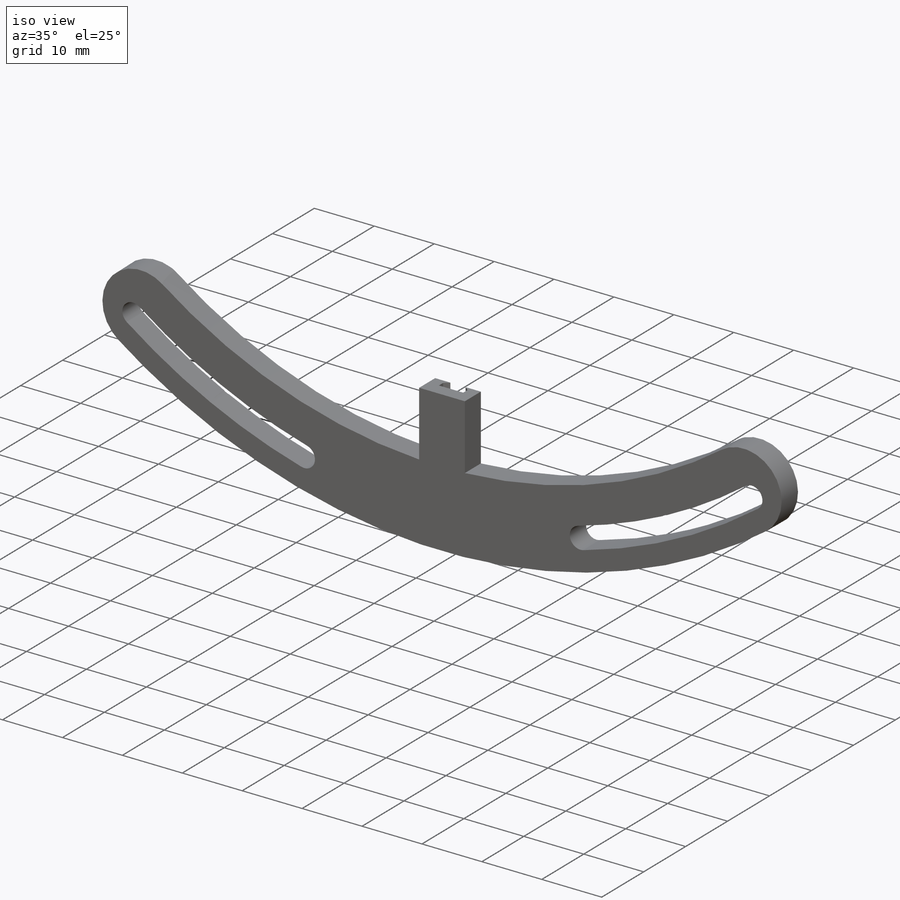
[diagram: iso view]
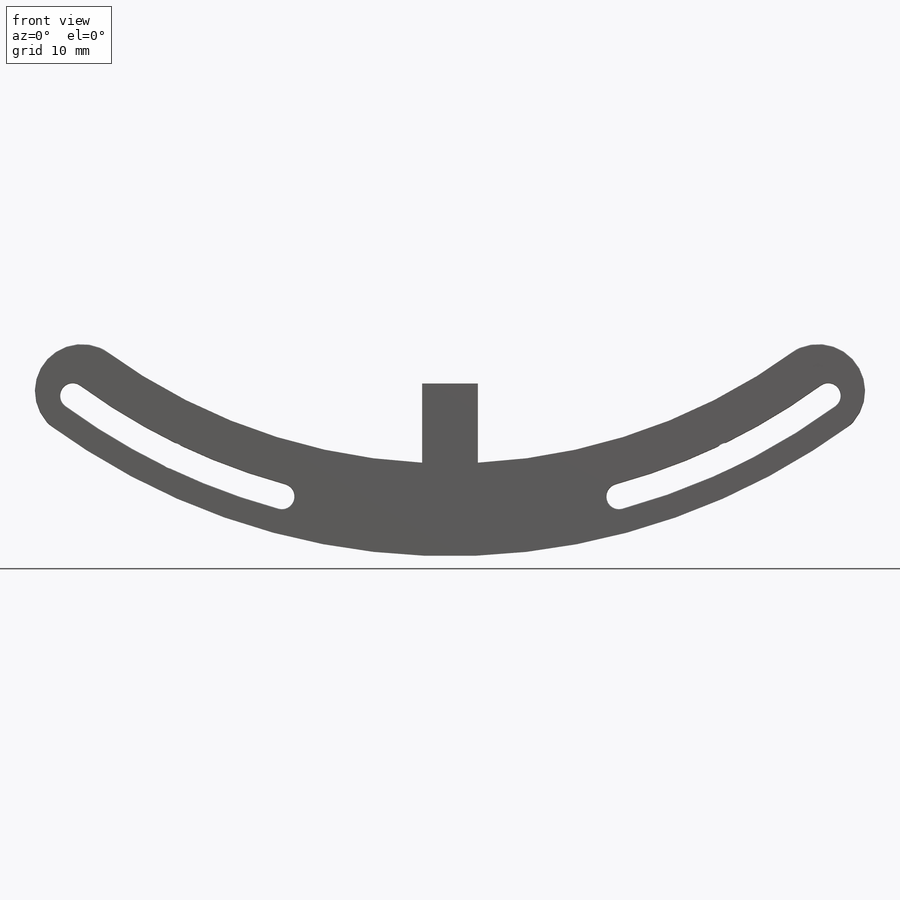
[diagram: front view]
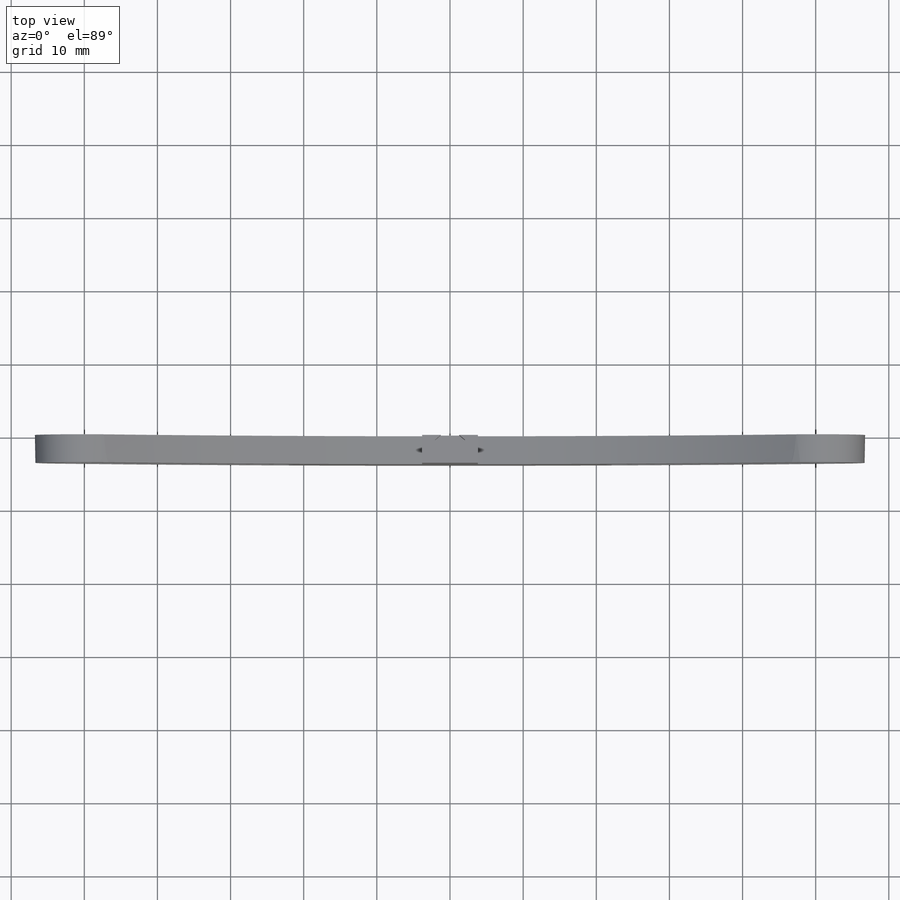
[diagram: top view]
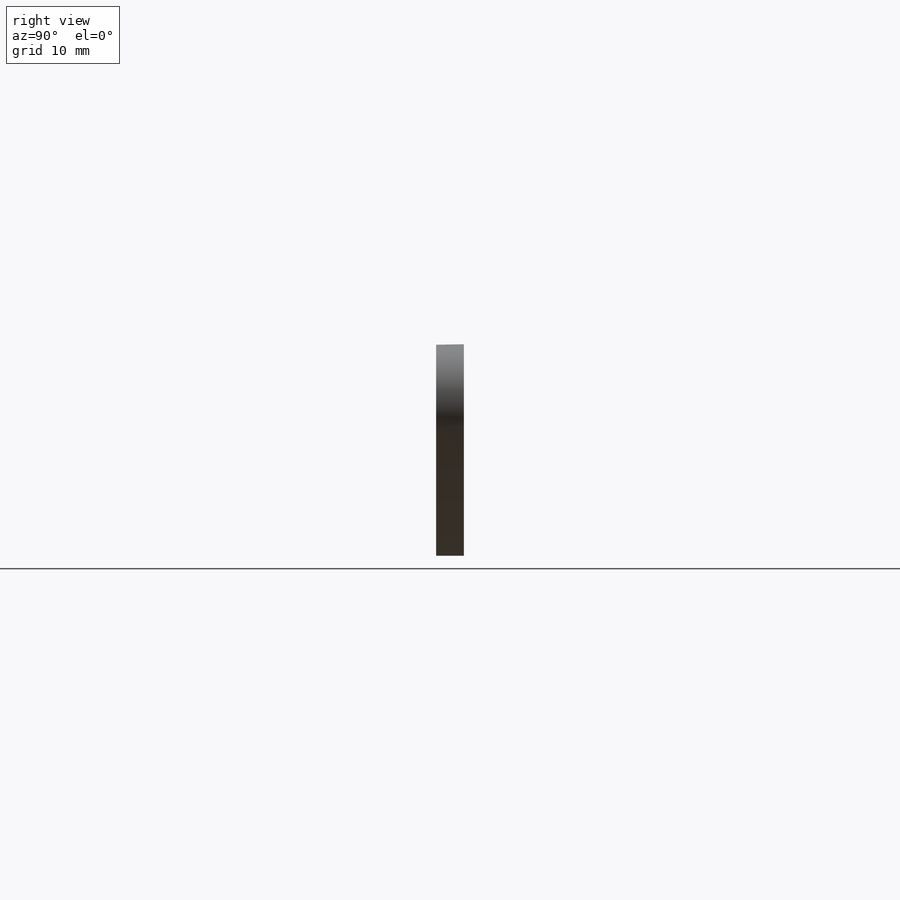
[diagram: right view]
SOLIDWORKS PART (.sldprt)
format: sldprt  version: not decoded by parser v0  size: 330,752 bytes
history: native  units: mm
features: sketch x5, cut_extrude x3, material x1, revolve x1, plane x1, extrude x1 (+11 scaffold rows collapsed)
feature tree (23):
  scaffold x11  (default folders/planes/origin — collapsed)
  material  "Material <not specified>"
  sketch  "Sketch1"  dims[c1.D1=7.62mm c1.D2=3.81mm c1.D3=12.7mm c1.D4=2.54mm c1.D5=82.296mm c1.D6=0.0mm c2.D1=79.756mm]
  revolve  "Revolve1"  Angle=360deg
  sketch  "Sketch2"  dims[D1=3.556mm D2=87.376mm D3=7.0]
  cut_extrude  "Cut-Extrude1"  [1 undecoded]
  sketch  "Sketch3"  dims[c1.D3=79.756mm c1.D4=92.456mm c1.D5=6.35mm c2.D3=79.756mm c2.D4=92.456mm c3.D3=79.756mm c3.D4=92.456mm c3.D1=~118.553491mm c4.D1=40.0deg c4.D2=~118.553491mm c5.D2=40.0deg c5.D5=31.75mm c5.D6=7.0]
  cut_extrude  "Cut-Extrude15"  [1 undecoded]
  plane  "Plane1"
  sketch  "Sketch8"  dims[D1=3.81mm D2=7.62mm]
  extrude  "Boss-Extrude1"  Depth=10.922mm
  sketch  "Sketch9"  dims[c1.D1=1.651mm c1.D2=4.064mm c1.D3=2.032mm c1.D4=1.016mm c1.D5=~1.057511mm c2.D5=90.0deg c3.D5=0.762mm c3.D2=1.651mm]
  cut_extrude  "Cut-Extrude16"  Depth=6.096mm
decode coverage: 8 of 10 modeling features carry decoded parameters
note: ~ marks probable driven/reference dimensions
note: 2 parameter values undecoded
note: suppression state not decoded; provenance and decode notes live in map.json
